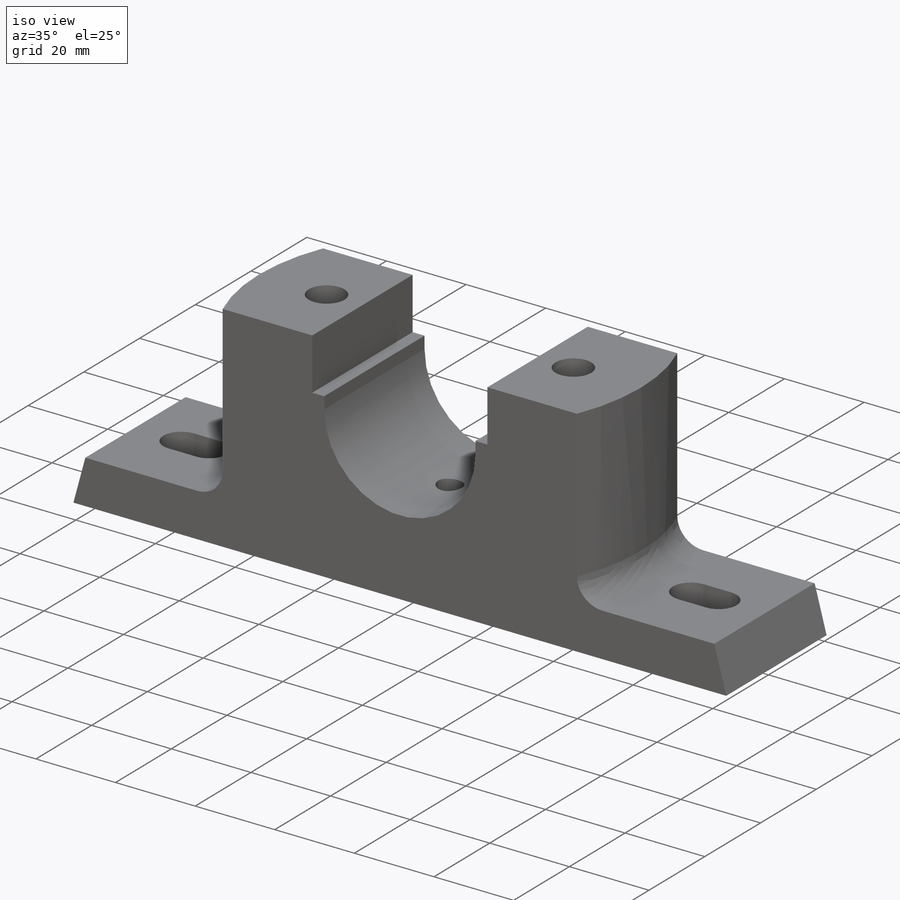
[diagram: iso view]
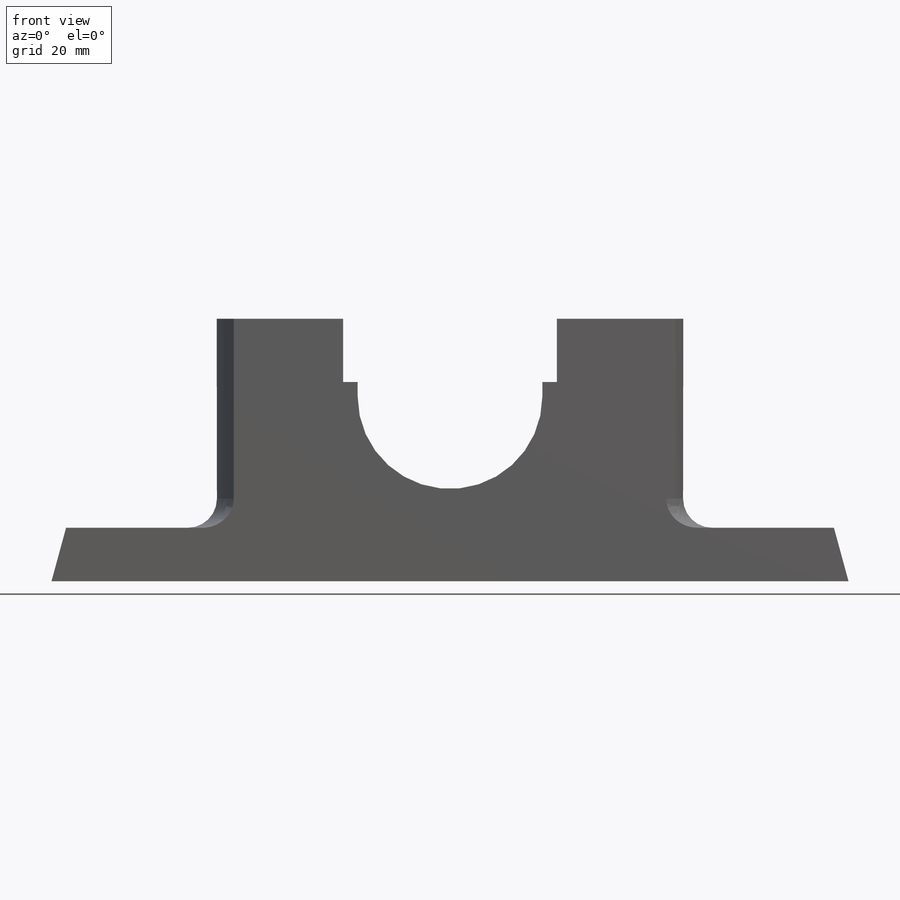
[diagram: front view]
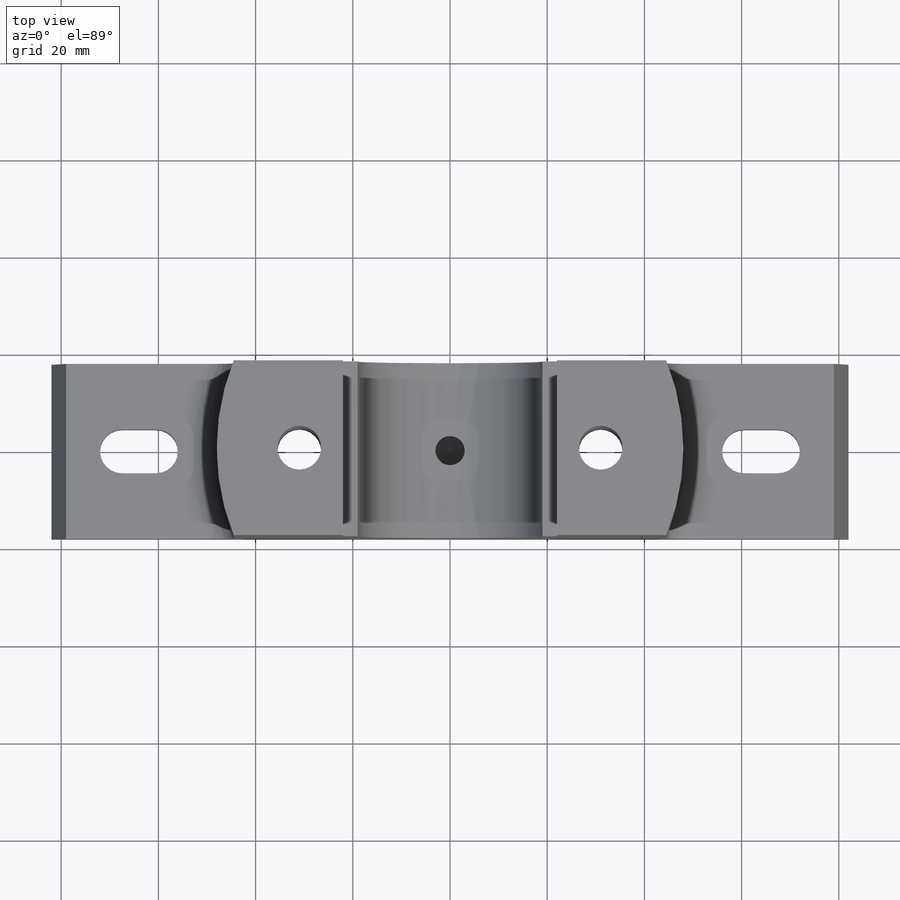
[diagram: top view]
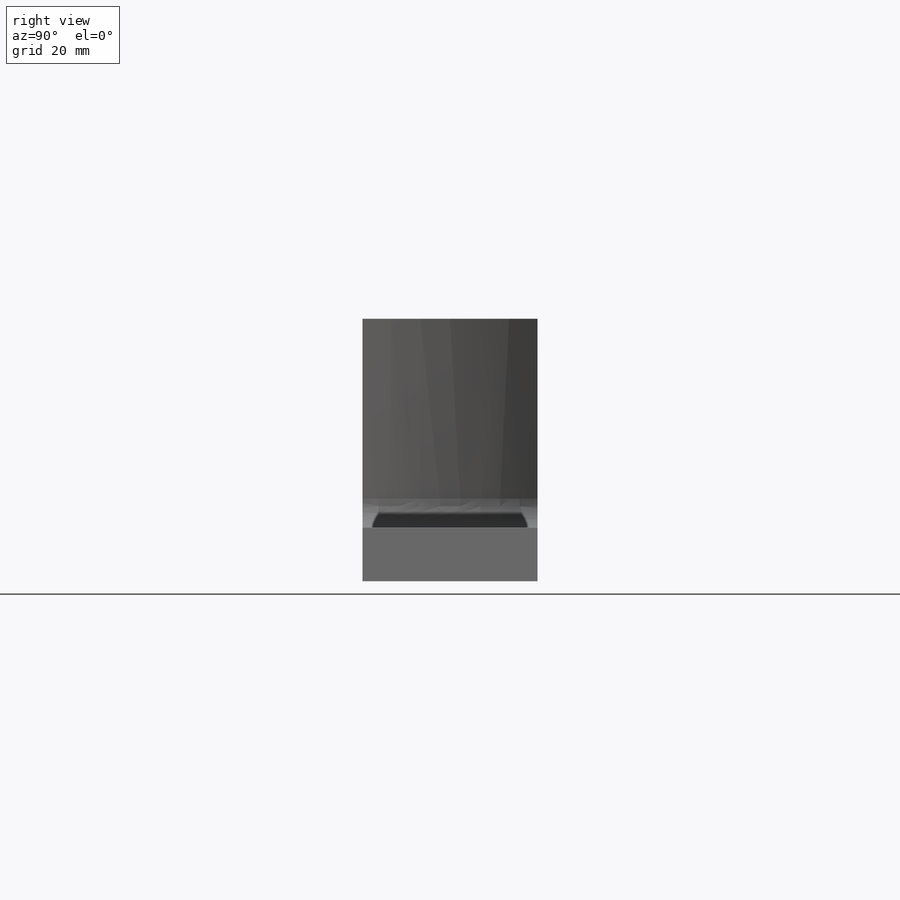
[diagram: right view]
SOLIDWORKS PART (.sldprt)
format: sldprt  version: not decoded by parser v0  size: 615,936 bytes
history: native  units: mm
features: sketch x8, cut_extrude x3, mirror x2, hole x2, fillet x2, material x1, extrude x1, thread x1 (+12 scaffold rows collapsed)
feature tree (32):
  scaffold x12  (default folders/planes/origin — collapsed)
  material  "Material <not specified>"
  sketch  "Sketch1"  dims[c1.D1=3.0mm c1.D2=~14.731619mm c2.D1=3.0mm c2.D2=11.0mm c2.D3=164.0mm c2.D4=0.0mm c2.D5=~37.811774mm c2.D6=100.0mm c2.D7=~75.623548mm c3.D5=38.0mm c3.D7=44.0mm c3.D8=13.0mm c3.D9=13.0mm c4.D8=3.0mm c4.D9=16.0mm c4.D10=54.0mm]
  extrude  "Boss-Extrude3"  Depth=36mm
  sketch  "Sketch3"  dims[D2=48.0mm D1=0.0mm]
  cut_extrude  "Cut-Extrude1"  [1 undecoded]
  mirror  "Mirror1"
  hole  "Ø8.0mm Dowel Hole1"  Diameter=6mm Depth=6mm
  sketch  "3DSketch2"  dims[D1=0.0mm D2=0.0mm]
  sketch  "Sketch5"  dims[hole-wizard template sketch: 47 standard entries collapsed; hole parameters kept: c15.Hole Depth=6.0mm c15.D3=~14.816244mm c15.Drill Angle=118.0deg]
  hole  "M10 Tapped Hole1"  Diameter=9mm Depth=54mm
  sketch  "Sketch7"  dims[D1=31.0mm D2=59.4mm]
  sketch  "Sketch8"  dims[hole-wizard template sketch: 60 standard entries collapsed; hole parameters kept: c18.Thru Tap Drill Depth=54.0mm]
  thread  "Hole Thread2"  Diameter=10mm  [1 undecoded]
  sketch  "Sketch9"  dims[D1=20.0mm]
  cut_extrude  "Cut-Extrude2"  Depth=8mm
  sketch  "Sketch10"  dims[D1=16.0mm D2=9.0mm D3=64.0mm]
  cut_extrude  "Cut-Extrude3"  [1 undecoded]
  mirror  "Mirror2"
  fillet  "Fillet2"  Radius=6mm
  fillet  "Fillet3"  Radius=6mm
decode coverage: 15 of 19 modeling features carry decoded parameters
note: ~ marks probable driven/reference dimensions
note: 3 parameter values undecoded
note: suppression state not decoded; provenance and decode notes live in map.json
